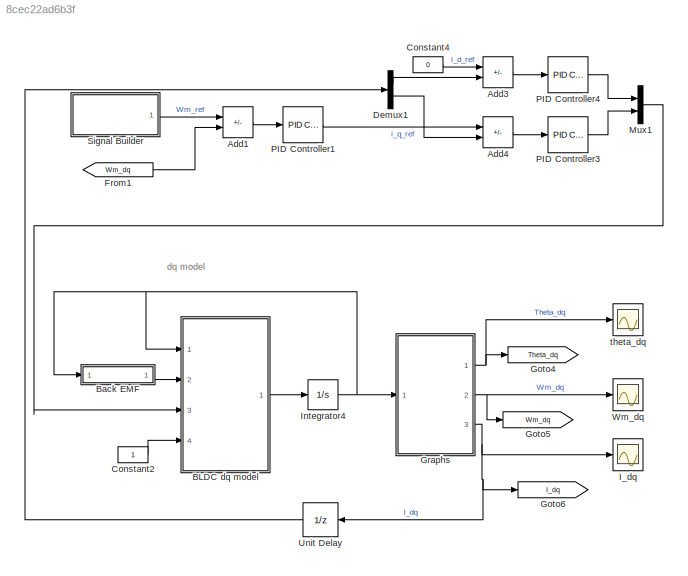
MODEL slx_8cec22ad6b3f
KIND model
CONFIG AbsTol = auto
CONFIG EnableMultiTasking = off
CONFIG FixedStep = 0.00001
CONFIG MaxStep = auto
CONFIG MinStep = auto
CONFIG RelTol = 1e-3
CONFIG SampleTimeConstraint = Unconstrained
CONFIG SolverName = FixedStepAuto
CONFIG StartTime = 0.0
CONFIG StopTime = 10
BLOCK [Sum] Add1
  IconShape = rectangular
  Inputs = +-
  Ports = [2, 1]
BLOCK [Sum] Add3
  IconShape = rectangular
  Inputs = +-
  Ports = [2, 1]
BLOCK [Sum] Add4
  IconShape = rectangular
  Inputs = +-
  Ports = [2, 1]
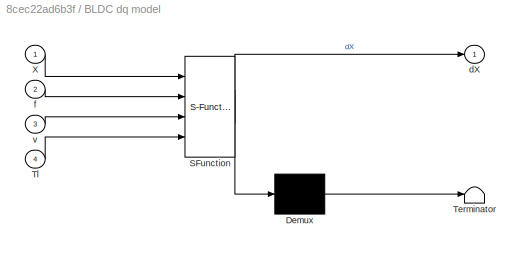
BLOCK [SubSystem] BLDC dq model
  ErrorFcn = Stateflow.Translate.translate
  PermitHierarchicalResolution = ExplicitOnly
  Ports = [4, 1]
  RequestExecContextInheritance = off
  SFBlockType = MATLAB Function
  TreatAsAtomicUnit = on
BLOCK [Demux] BLDC dq model/ Demux 
  Outputs = 1
  Ports = [1, 1]
BLOCK [S-Function] BLDC dq model/ SFunction 
  EnableBusSupport = on
  FunctionName = sf_sfun
  PortCounts = [4 2]
  Ports = [4, 2]
  SFcnIsStateOwnerBlock = off
  SFunctionDeploymentMode = off
  Tag = Stateflow S-Function 10
BLOCK [Terminator] BLDC dq model/ Terminator 
BLOCK [Inport] BLDC dq model/Tl
  Port = 4
BLOCK [Inport] BLDC dq model/X
BLOCK [Outport] BLDC dq model/dX
  VectorParamsAs1DForOutWhenUnconnected = off
BLOCK [Inport] BLDC dq model/f
  Port = 2
BLOCK [Inport] BLDC dq model/v
  Port = 3
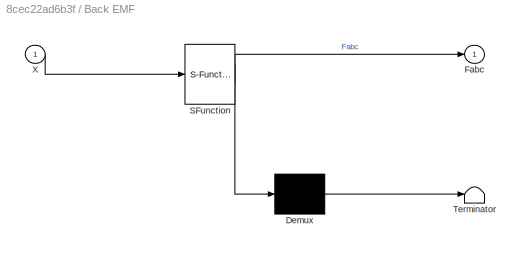
BLOCK [SubSystem] Back EMF
  ErrorFcn = Stateflow.Translate.translate
  PermitHierarchicalResolution = ExplicitOnly
  Ports = [1, 1]
  RequestExecContextInheritance = off
  SFBlockType = MATLAB Function
  TreatAsAtomicUnit = on
BLOCK [Demux] Back EMF/ Demux 
  Outputs = 1
  Ports = [1, 1]
BLOCK [S-Function] Back EMF/ SFunction 
  EnableBusSupport = on
  FunctionName = sf_sfun
  PortCounts = [1 2]
  Ports = [1, 2]
  SFcnIsStateOwnerBlock = off
  SFunctionDeploymentMode = off
  Tag = Stateflow S-Function 11
BLOCK [Terminator] Back EMF/ Terminator 
BLOCK [Outport] Back EMF/Fabc
  VectorParamsAs1DForOutWhenUnconnected = off
BLOCK [Inport] Back EMF/X
BLOCK [Constant] Constant2
BLOCK [Constant] Constant4
  Value = 0
BLOCK [Demux] Demux1
  Outputs = 2
  Ports = [1, 2]
BLOCK [From] From1
  GotoTag = Wm_dq
BLOCK [Goto] Goto4
  GotoTag = Theta_dq
BLOCK [Goto] Goto5
  GotoTag = Wm_dq
BLOCK [Goto] Goto6
  GotoTag = I_dq
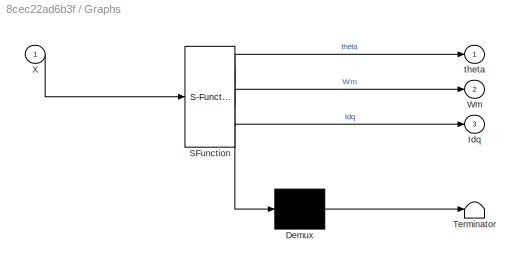
BLOCK [SubSystem] Graphs
  ErrorFcn = Stateflow.Translate.translate
  PermitHierarchicalResolution = ExplicitOnly
  Ports = [1, 3]
  RequestExecContextInheritance = off
  SFBlockType = MATLAB Function
  TreatAsAtomicUnit = on
BLOCK [Demux] Graphs/ Demux 
  Outputs = 1
  Ports = [1, 1]
BLOCK [S-Function] Graphs/ SFunction 
  EnableBusSupport = on
  FunctionName = sf_sfun
  PortCounts = [1 4]
  Ports = [1, 4]
  SFcnIsStateOwnerBlock = off
  SFunctionDeploymentMode = off
  Tag = Stateflow S-Function 12
BLOCK [Terminator] Graphs/ Terminator 
BLOCK [Outport] Graphs/Idq
  Port = 3
  VectorParamsAs1DForOutWhenUnconnected = off
BLOCK [Outport] Graphs/Wm
  Port = 2
  VectorParamsAs1DForOutWhenUnconnected = off
BLOCK [Inport] Graphs/X
BLOCK [Outport] Graphs/theta
  VectorParamsAs1DForOutWhenUnconnected = off
BLOCK [Scope] I_dq
  Floating = off
  NumInputPorts = 1
  Ports = [1]
  ScopeSpecificationString = Simulink.scopes.TimeScopeBlockCfg('CurrentConfiguration', extmgr.ConfigurationSet(extmgr.Configuration('Core','General UI',true),extmgr.Configuration('Core','Source UI',true),extmgr.Configuration('Sources','WiredSimulink',true,'DataLoggingVariableName','ScopeData1'),extmgr.Configuration('Visuals','Time Domain',true,'SerializedDisplays',{struct('MinYLimReal','-14.96122','MaxYLimReal','3.19305','YLa...<+1476ch>
BLOCK [Integrator] Integrator4
  InitialCondition = [0;0;1;0]
  Ports = [1, 1]
BLOCK [Mux] Mux1
  DisplayOption = bar
  Inputs = 2
  Ports = [2, 1]
BLOCK [Reference] PID Controller1  REF=pid_lib/PID Controller
  Ports = [1, 1]
  SourceBlock = pid_lib/PID Controller
  SourceProductBaseCode = SL
  SourceType = PID 1dof
BLOCK [Reference] PID Controller3  REF=pid_lib/PID Controller
  Ports = [1, 1]
  SourceBlock = pid_lib/PID Controller
  SourceProductBaseCode = SL
  SourceType = PID 1dof
BLOCK [Reference] PID Controller4  REF=pid_lib/PID Controller
  Ports = [1, 1]
  SourceBlock = pid_lib/PID Controller
  SourceProductBaseCode = SL
  SourceType = PID 1dof
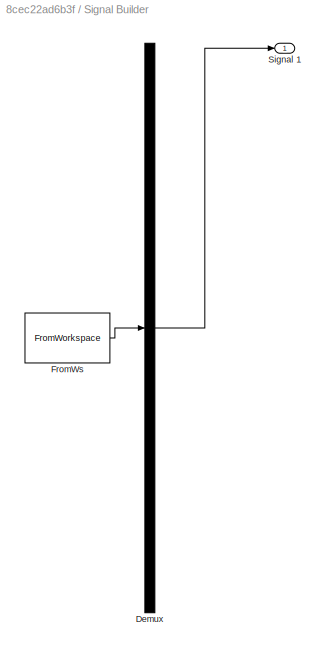
BLOCK [SubSystem] Signal Builder
  ClipboardFcn = sigbuilder_block('clipboard');
  CloseFcn = sigbuilder_block('close');
  ContinueFcn = sigbuilder_block('continue');
  CopyFcn = sigbuilder_block('copy');
  DeleteFcn = sigbuilder_block('delete');
  LoadFcn = sigbuilder_block('load');
  MaskHideContents = on
  ModelCloseFcn = sigbuilder_block('modelClose');
  NameChangeFcn = sigbuilder_block('namechange');
  OpenFcn = sigbuilder_block('open',[437.6 199.2 550.4 400 ]);
  PauseFcn = sigbuilder_block('pause');
  Ports = [0, 1]
  PreSaveFcn = sigbuilder_block('preSave');
  RequestExecContextInheritance = off
  StartFcn = sigbuilder_block('start');
  StopFcn = sigbuilder_block('stop');
  Tag = STV Subsys
BLOCK [Demux] Signal Builder/Demux
  DisplayOption = none
  Outputs = 1
  Ports = [1, 1]
  Tag = STV Demux
BLOCK [FromWorkspace] Signal Builder/FromWs
  Tag = STV FromWs
  VariableName = tuvar
BLOCK [Outport] Signal Builder/Signal 1
  Tag = STV Outport
BLOCK [UnitDelay] Unit Delay
  HasFrameUpgradeWarning = on
  SampleTime = -1
BLOCK [Scope] Wm_dq
  Floating = off
  NumInputPorts = 1
  Ports = [1]
  ScopeSpecificationString = Simulink.scopes.TimeScopeBlockCfg('CurrentConfiguration', extmgr.ConfigurationSet(extmgr.Configuration('Core','General UI',true),extmgr.Configuration('Core','Source UI',true),extmgr.Configuration('Sources','WiredSimulink',true,'DataLoggingVariableName','ScopeData2'),extmgr.Configuration('Visuals','Time Domain',true,'SerializedDisplays',{struct('MinYLimReal','-14.21119','MaxYLimReal','60.33299','YL...<+1443ch>
BLOCK [Scope] theta_dq
  Floating = off
  NumInputPorts = 1
  Ports = [1]
  ScopeSpecificationString = Simulink.scopes.TimeScopeBlockCfg('CurrentConfiguration', extmgr.ConfigurationSet(extmgr.Configuration('Core','General UI',true),extmgr.Configuration('Core','Source UI',true),extmgr.Configuration('Sources','WiredSimulink',true,'DataLoggingVariableName','ScopeData3'),extmgr.Configuration('Visuals','Time Domain',true,'SerializedDisplays',{struct('MinYLimReal','-23.11938','MaxYLimReal','185.59616','Y...<+1431ch>
ANNOTATION (root): dq model
LINE Add1:1 -> PID Controller1:1
LINE Add3:1 -> PID Controller4:1
LINE Add4:1 -> PID Controller3:1
LINE BLDC dq model:1 -> Integrator4:1
LINE Back EMF:1 -> BLDC dq model:2
LINE Constant2:1 -> BLDC dq model:4
LINE Constant4:1 -> Add3:1
LINE Demux1:1 -> Add3:2
LINE Demux1:2 -> Add4:2
LINE From1:1 -> Add1:2
NET Graphs:1 -> Goto4:1, theta_dq:1
NET Graphs:2 -> Goto5:1, Wm_dq:1
NET Graphs:3 -> Goto6:1, I_dq:1, Unit Delay:1
NET Integrator4:1 -> BLDC dq model:1, Back EMF:1, Graphs:1
LINE Mux1:1 -> BLDC dq model:3
LINE PID Controller1:1 -> Add4:1
LINE PID Controller3:1 -> Mux1:2
LINE PID Controller4:1 -> Mux1:1
LINE Signal Builder:1 -> Add1:1
LINE Unit Delay:1 -> Demux1:1
note: NET lines group one-source signal fan-out (src -> all destinations, sorted); 1:1 wires keep LINE
CHART BLDC dq model states=1 transitions=1
  STATE_LABEL 'eML_blk_kernel()'
  STATE_LABEL 'SCRIPT:\nfunction dX = fcn(X,f,v,Tl)\ni_d = X(1); i_q = X(2); wm = X(3); theta = X(4);\ni_dq = X(1:2);\n\nlambda = 0.0433;\nR = 0.35;\nL = 0.001;\nM = 0.000;\nJ = 0.00018;\nP = 4;\nb = 0.0034;\n\n\nM_LR = [-R/(L-M)  wm; -wm  -R/(L-M)];\n                \n% Park clarke transform eliminating the third element\nPC_Te = (sqrt(2)/2)*[sqrt(3)*cos(theta)  sin(theta)  -sin(theta) ; ...\n                    -sqrt(3)*sin(the...<+257ch>'
CHART Back EMF states=1 transitions=1
  STATE_LABEL 'eML_blk_kernel()'
  STATE_LABEL 'SCRIPT:\nfunction Fabc = fcn(X)\nFabc = [0;0;0];\n    theta = mod(X(4),2*pi); %X(4)\n    %theta = mod(X,2*pi);\n    \n    if (0<=theta)&&(theta<(pi/6))\n        Fa = (6/pi)*theta;\n    elseif ((pi/6)<=theta)&&(theta<(5*pi/6))\n        Fa = 1;\n    elseif ((5*pi/6<=theta))&&(theta<(7*pi/6))\n        Fa = (6/pi)*(pi-theta);\n    elseif ((7*pi/6)<=theta)&&(theta<(11*pi/6))\n        Fa = -1;\n    elseif ((11*pi/6)<...<+996ch>'
CHART Graphs states=1 transitions=1
  STATE_LABEL 'eML_blk_kernel()'
  STATE_LABEL 'SCRIPT:\nfunction [theta,Wm,Idq] = DEMUX(X)\ntheta = X(4); Wm = X(3);Idq = X(1:2);'
CHART  states=0 transitions=0
CHART  states=0 transitions=0
CHART  states=0 transitions=0
